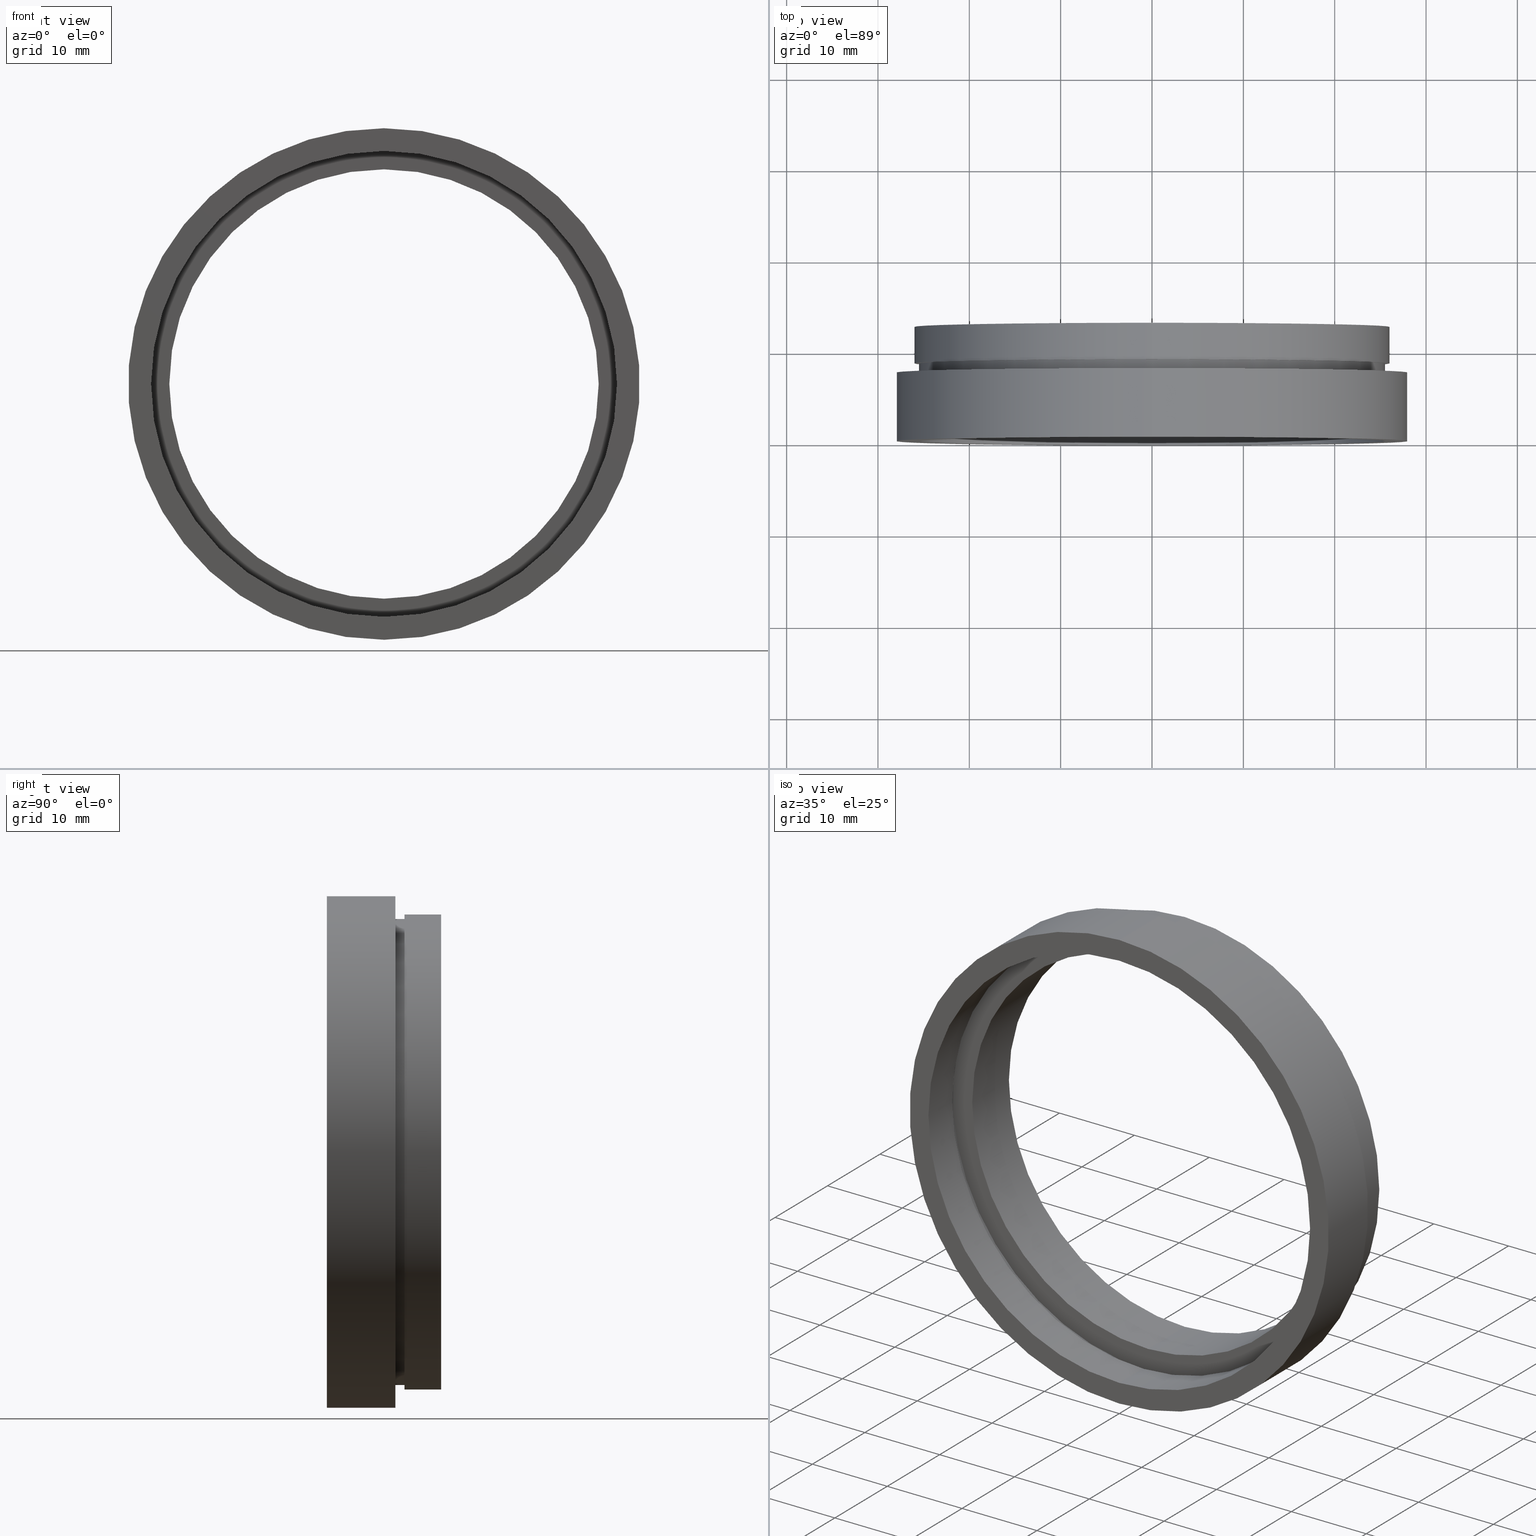
[diagram: canonical four-view strip — front | top / right | iso, engineering-drawing reading convention]
A machine part, canonical four-view strip (front | top / right | iso — engineering-drawing reading convention). The complete STEP part file that produces these views, byte-faithful:
ISO-10303-21;
HEADER;
FILE_DESCRIPTION (( 'STEP AP214' ),
    '1' );
FILE_NAME ('503005.STEP',
    '2019-09-04T05:41:23',
    ( '' ),
    ( '' ),
    'SwSTEP 2.0',
    'SolidWorks 2016',
    '' );
FILE_SCHEMA (( 'AUTOMOTIVE_DESIGN' ));
ENDSEC;

DATA;
#1 = DIRECTION ( 'NONE',  ( -0.0000000000000000000, 1.000000000000000000, -0.0000000000000000000 ) ) ;
#2 = VECTOR ( 'NONE', #183, 1000.000000000000000 ) ;
#3 = DIRECTION ( 'NONE',  ( 0.0000000000000000000, 0.0000000000000000000, 1.000000000000000000 ) ) ;
#4 = EDGE_CURVE ( 'NONE', #502, #486, #518, .T. ) ;
#5 = DIRECTION ( 'NONE',  ( -0.0000000000000000000, 1.000000000000000000, -0.0000000000000000000 ) ) ;
#6 = ORIENTED_EDGE ( 'NONE', *, *, #397, .T. ) ;
#7 = ORIENTED_EDGE ( 'NONE', *, *, #243, .F. ) ;
#8 = SURFACE_STYLE_USAGE ( .BOTH. , #163 ) ;
#9 = STYLED_ITEM ( 'NONE', ( #399 ), #546 ) ;
#10 =( LENGTH_UNIT ( ) NAMED_UNIT ( * ) SI_UNIT ( .MILLI., .METRE. ) );
#11 = ADVANCED_FACE ( 'NONE', ( #494 ), #536, .F. ) ;
#12 = DIRECTION ( 'NONE',  ( 0.0000000000000000000, -1.000000000000000000, 0.0000000000000000000 ) ) ;
#13 = CARTESIAN_POINT ( 'NONE',  ( 3.122849337825753000E-015, 161.3761669434274500, -25.50000000000001800 ) ) ;
#14 = ORIENTED_EDGE ( 'NONE', *, *, #525, .T. ) ;
#15 = ADVANCED_FACE ( 'NONE', ( #318 ), #45, .T. ) ;
#16 = CYLINDRICAL_SURFACE ( 'NONE', #369, 25.50000000000001800 ) ;
#17 = VECTOR ( 'NONE', #327, 1000.000000000000000 ) ;
#18 = AXIS2_PLACEMENT_3D ( 'NONE', #495, #340, #197 ) ;
#19 = EDGE_CURVE ( 'NONE', #575, #363, #423, .T. ) ;
#20 = ORIENTED_EDGE ( 'NONE', *, *, #271, .T. ) ;
#21 = EDGE_LOOP ( 'NONE', ( #7, #127 ) ) ;
#22 = DIRECTION ( 'NONE',  ( -0.0000000000000000000, 1.000000000000000000, -0.0000000000000000000 ) ) ;
#23 =( NAMED_UNIT ( * ) SI_UNIT ( $, .STERADIAN. ) SOLID_ANGLE_UNIT ( ) );
#24 = EDGE_LOOP ( 'NONE', ( #247, #175, #14, #96 ) ) ;
#25 = ORIENTED_EDGE ( 'NONE', *, *, #19, .F. ) ;
#26 = FACE_OUTER_BOUND ( 'NONE', #146, .T. ) ;
#27 = FACE_OUTER_BOUND ( 'NONE', #31, .T. ) ;
#28 = SURFACE_STYLE_FILL_AREA ( #613 ) ;
#29 = CARTESIAN_POINT ( 'NONE',  ( 0.0000000000000000000, 8.499999999999980500, 0.0000000000000000000 ) ) ;
#30 = EDGE_CURVE ( 'NONE', #164, #200, #290, .T. ) ;
#31 = EDGE_LOOP ( 'NONE', ( #624, #587, #541, #139 ) ) ;
#32 = DIRECTION ( 'NONE',  ( -0.0000000000000000000, 1.000000000000000000, -0.0000000000000000000 ) ) ;
#33 = VERTEX_POINT ( 'NONE', #174 ) ;
#34 = DIRECTION ( 'NONE',  ( -0.0000000000000000000, 1.000000000000000000, -0.0000000000000000000 ) ) ;
#35 = SURFACE_STYLE_FILL_AREA ( #80 ) ;
#36 = CARTESIAN_POINT ( 'NONE',  ( 0.0000000000000000000, 8.499999999999980500, 26.00000000000001800 ) ) ;
#37 = MECHANICAL_DESIGN_GEOMETRIC_PRESENTATION_REPRESENTATION (  '', ( #9 ), #71 ) ;
#38 = SURFACE_SIDE_STYLE ('',( #441 ) ) ;
#39 = PRESENTATION_STYLE_ASSIGNMENT (( #70 ) ) ;
#40 = EDGE_LOOP ( 'NONE', ( #444, #261 ) ) ;
#41 = DIRECTION ( 'NONE',  ( 0.0000000000000000000, 0.0000000000000000000, 1.000000000000000000 ) ) ;
#42 = ORIENTED_EDGE ( 'NONE', *, *, #435, .T. ) ;
#43 = CARTESIAN_POINT ( 'NONE',  ( 0.0000000000000000000, 12.49999999999998400, 0.0000000000000000000 ) ) ;
#44 = PLANE ( 'NONE',  #410 ) ;
#45 = CYLINDRICAL_SURFACE ( 'NONE', #548, 25.50000000000001400 ) ;
#46 = CIRCLE ( 'NONE', #484, 25.50000000000001400 ) ;
#47 = CARTESIAN_POINT ( 'NONE',  ( 0.0000000000000000000, 4.499999999999976000, 25.50000000000001800 ) ) ;
#48 = LINE ( 'NONE', #376, #17 ) ;
#49 = CARTESIAN_POINT ( 'NONE',  ( 3.184081677783120200E-015, 12.49999999999998400, -26.00000000000001800 ) ) ;
#50 = AXIS2_PLACEMENT_3D ( 'NONE', #294, #339, #51 ) ;
#51 = DIRECTION ( 'NONE',  ( 0.0000000000000000000, 0.0000000000000000000, 1.000000000000000000 ) ) ;
#52 = ORIENTED_EDGE ( 'NONE', *, *, #435, .F. ) ;
#53 = PRESENTATION_LAYER_ASSIGNMENT (  '', '', ( #9 ) ) ;
#54 = EDGE_CURVE ( 'NONE', #363, #575, #558, .T. ) ;
#55 = CARTESIAN_POINT ( 'NONE',  ( 0.0000000000000000000, 7.499999999999978700, 0.0000000000000000000 ) ) ;
#56 = VECTOR ( 'NONE', #448, 1000.000000000000000 ) ;
#57 = ADVANCED_BREP_SHAPE_REPRESENTATION ( '503005', ( #469, #596 ), #612 ) ;
#58 =( NAMED_UNIT ( * ) SI_UNIT ( $, .STERADIAN. ) SOLID_ANGLE_UNIT ( ) );
#59 = EDGE_LOOP ( 'NONE', ( #516, #190, #588, #52 ) ) ;
#60 = ADVANCED_FACE ( 'NONE', ( #26 ), #298, .T. ) ;
#61 = DIRECTION ( 'NONE',  ( -0.0000000000000000000, 1.000000000000000000, -0.0000000000000000000 ) ) ;
#62 = CYLINDRICAL_SURFACE ( 'NONE', #550, 23.50000000000002100 ) ;
#63 = ORIENTED_EDGE ( 'NONE', *, *, #101, .T. ) ;
#64 = FILL_AREA_STYLE_COLOUR ( '', #419 ) ;
#65 = CARTESIAN_POINT ( 'NONE',  ( 0.0000000000000000000, 161.3761669434274500, 0.0000000000000000000 ) ) ;
#66 = VERTEX_POINT ( 'NONE', #481 ) ;
#67 = EDGE_CURVE ( 'NONE', #184, #92, #553, .T. ) ;
#68 = CIRCLE ( 'NONE', #514, 25.50000000000001800 ) ;
#69 = PRODUCT_CONTEXT ( 'NONE', #456, 'mechanical' ) ;
#70 = SURFACE_STYLE_USAGE ( .BOTH. , #119 ) ;
#71 =( GEOMETRIC_REPRESENTATION_CONTEXT ( 3 ) GLOBAL_UNCERTAINTY_ASSIGNED_CONTEXT ( ( #102 ) ) GLOBAL_UNIT_ASSIGNED_CONTEXT ( ( #623, #135, #482 ) ) REPRESENTATION_CONTEXT ( 'NONE', 'WORKASPACE' ) );
#72 = CIRCLE ( 'NONE', #466, 25.50000000000001800 ) ;
#73 = EDGE_LOOP ( 'NONE', ( #519, #513 ) ) ;
#74 = AXIS2_PLACEMENT_3D ( 'NONE', #100, #1, #41 ) ;
#75 = CYLINDRICAL_SURFACE ( 'NONE', #393, 23.50000000000002100 ) ;
#76 = EDGE_CURVE ( 'NONE', #607, #144, #617, .T. ) ;
#77 = ORIENTED_EDGE ( 'NONE', *, *, #430, .T. ) ;
#78 = ORIENTED_EDGE ( 'NONE', *, *, #359, .T. ) ;
#79 = CARTESIAN_POINT ( 'NONE',  ( 0.0000000000000000000, 161.3761669434274500, 0.0000000000000000000 ) ) ;
#80 = FILL_AREA_STYLE ('',( #442 ) ) ;
#81 =( LENGTH_UNIT ( ) NAMED_UNIT ( * ) SI_UNIT ( .MILLI., .METRE. ) );
#82 = CARTESIAN_POINT ( 'NONE',  ( 0.0000000000000000000, 161.3761669434274500, 0.0000000000000000000 ) ) ;
#83 = CARTESIAN_POINT ( 'NONE',  ( 0.0000000000000000000, 161.3761669434274500, 26.10000000000002300 ) ) ;
#84 = CARTESIAN_POINT ( 'NONE',  ( 0.0000000000000000000, 4.499999999999976000, 26.10000000000002300 ) ) ;
#85 =( NAMED_UNIT ( * ) PLANE_ANGLE_UNIT ( ) SI_UNIT ( $, .RADIAN. ) );
#86 = EDGE_LOOP ( 'NONE', ( #138, #598, #396, #412 ) ) ;
#87 = DIRECTION ( 'NONE',  ( -0.0000000000000000000, 1.000000000000000000, -0.0000000000000000000 ) ) ;
#88 = CARTESIAN_POINT ( 'NONE',  ( 25.50000000000001400, 7.499999999999985800, 0.0000000000000000000 ) ) ;
#89 = FACE_OUTER_BOUND ( 'NONE', #73, .T. ) ;
#90 = CARTESIAN_POINT ( 'NONE',  ( 0.0000000000000000000, 5.499999999999976900, 0.0000000000000000000 ) ) ;
#91 = CARTESIAN_POINT ( 'NONE',  ( 3.429011037612590900E-015, -2.775557561562891400E-014, -28.00000000000001800 ) ) ;
#92 = VERTEX_POINT ( 'NONE', #230 ) ;
#93 = CARTESIAN_POINT ( 'NONE',  ( 0.0000000000000000000, 12.49999999999998400, 23.50000000000002100 ) ) ;
#94 = DIRECTION ( 'NONE',  ( -0.0000000000000000000, 1.000000000000000000, -0.0000000000000000000 ) ) ;
#95 = EDGE_LOOP ( 'NONE', ( #141, #161 ) ) ;
#96 = ORIENTED_EDGE ( 'NONE', *, *, #260, .F. ) ;
#97 =( NAMED_UNIT ( * ) PLANE_ANGLE_UNIT ( ) SI_UNIT ( $, .RADIAN. ) );
#98 = DIRECTION ( 'NONE',  ( 0.0000000000000000000, 0.0000000000000000000, 1.000000000000000000 ) ) ;
#99 = COLOUR_RGB ( '',1.000000000000000000, 1.000000000000000000, 1.000000000000000000 ) ;
#100 = CARTESIAN_POINT ( 'NONE',  ( 0.0000000000000000000, 161.3761669434274500, 0.0000000000000000000 ) ) ;
#101 = EDGE_CURVE ( 'NONE', #356, #66, #413, .T. ) ;
#102 = UNCERTAINTY_MEASURE_WITH_UNIT (LENGTH_MEASURE( 1.000000000000000100E-005 ), #623, 'distance_accuracy_value', 'NONE');
#103 = CARTESIAN_POINT ( 'NONE',  ( 28.00000000000001800, -1.408179048343280700E-014, 0.0000000000000000000 ) ) ;
#104 = AXIS2_PLACEMENT_3D ( 'NONE', #90, #489, #439 ) ;
#105 = ADVANCED_FACE ( 'NONE', ( #360 ), #512, .T. ) ;
#106 = DIRECTION ( 'NONE',  ( -0.0000000000000000000, 1.000000000000000000, -0.0000000000000000000 ) ) ;
#107 = LINE ( 'NONE', #193, #357 ) ;
#108 = ORIENTED_EDGE ( 'NONE', *, *, #114, .F. ) ;
#109 = ADVANCED_FACE ( 'NONE', ( #185 ), #62, .F. ) ;
#110 = DIRECTION ( 'NONE',  ( 0.0000000000000000000, 0.0000000000000000000, 1.000000000000000000 ) ) ;
#111 = SHAPE_DEFINITION_REPRESENTATION ( #348, #57 ) ;
#112 = PRESENTATION_STYLE_ASSIGNMENT (( #315 ) ) ;
#113 = STYLED_ITEM ( 'NONE', ( #521 ), #167 ) ;
#114 = EDGE_CURVE ( 'NONE', #557, #33, #338, .T. ) ;
#115 = VECTOR ( 'NONE', #94, 1000.000000000000000 ) ;
#116 =( GEOMETRIC_REPRESENTATION_CONTEXT ( 3 ) GLOBAL_UNCERTAINTY_ASSIGNED_CONTEXT ( ( #296 ) ) GLOBAL_UNIT_ASSIGNED_CONTEXT ( ( #555, #418, #510 ) ) REPRESENTATION_CONTEXT ( 'NONE', 'WORKASPACE' ) );
#117 = STYLED_ITEM ( 'NONE', ( #39 ), #57 ) ;
#118 = EDGE_CURVE ( 'NONE', #92, #252, #48, .T. ) ;
#119 = SURFACE_SIDE_STYLE ('',( #304 ) ) ;
#120 = EDGE_LOOP ( 'NONE', ( #497, #405 ) ) ;
#121 = APPLICATION_CONTEXT ( 'automotive_design' ) ;
#122 = DIRECTION ( 'NONE',  ( -0.0000000000000000000, 1.000000000000000000, -0.0000000000000000000 ) ) ;
#123 =( GEOMETRIC_REPRESENTATION_CONTEXT ( 3 ) GLOBAL_UNCERTAINTY_ASSIGNED_CONTEXT ( ( #572 ) ) GLOBAL_UNIT_ASSIGNED_CONTEXT ( ( #361, #362, #177 ) ) REPRESENTATION_CONTEXT ( 'NONE', 'WORKASPACE' ) );
#124 = PRESENTATION_LAYER_ASSIGNMENT (  '', '', ( #493 ) ) ;
#125 = CARTESIAN_POINT ( 'NONE',  ( 0.0000000000000000000, -2.775557561562891400E-014, 0.0000000000000000000 ) ) ;
#126 = CIRCLE ( 'NONE', #552, 23.50000000000002100 ) ;
#127 = ORIENTED_EDGE ( 'NONE', *, *, #101, .F. ) ;
#128 = DIRECTION ( 'NONE',  ( 0.0000000000000000000, 0.0000000000000000000, 1.000000000000000000 ) ) ;
#129 = ORIENTED_EDGE ( 'NONE', *, *, #344, .F. ) ;
#130 = PRESENTATION_LAYER_ASSIGNMENT (  '', '', ( #117 ) ) ;
#131 = CYLINDRICAL_SURFACE ( 'NONE', #18, 25.50000000000001400 ) ;
#132 =( NAMED_UNIT ( * ) PLANE_ANGLE_UNIT ( ) SI_UNIT ( $, .RADIAN. ) );
#133 = CARTESIAN_POINT ( 'NONE',  ( 0.0000000000000000000, 7.499999999999978700, 0.0000000000000000000 ) ) ;
#134 = EDGE_CURVE ( 'NONE', #561, #438, #320, .T. ) ;
#135 =( NAMED_UNIT ( * ) PLANE_ANGLE_UNIT ( ) SI_UNIT ( $, .RADIAN. ) );
#136 = CARTESIAN_POINT ( 'NONE',  ( 2.877919977996282700E-015, 5.499999999999976900, -23.50000000000002100 ) ) ;
#137 = VERTEX_POINT ( 'NONE', #373 ) ;
#138 = ORIENTED_EDGE ( 'NONE', *, *, #430, .F. ) ;
#139 = ORIENTED_EDGE ( 'NONE', *, *, #372, .F. ) ;
#140 = FILL_AREA_STYLE_COLOUR ( '', #210 ) ;
#141 = ORIENTED_EDGE ( 'NONE', *, *, #446, .F. ) ;
#142 = CARTESIAN_POINT ( 'NONE',  ( 0.0000000000000000000, 12.49999999999998400, 0.0000000000000000000 ) ) ;
#143 = PLANE ( 'NONE',  #192 ) ;
#144 = VERTEX_POINT ( 'NONE', #524 ) ;
#145 = DIRECTION ( 'NONE',  ( 0.0000000000000000000, 0.0000000000000000000, 1.000000000000000000 ) ) ;
#146 = EDGE_LOOP ( 'NONE', ( #437, #78, #274, #205 ) ) ;
#147 = PRODUCT_DEFINITION_CONTEXT ( 'detailed design', #121, 'design' ) ;
#148 = AXIS2_PLACEMENT_3D ( 'NONE', #335, #381, #289 ) ;
#149 = FACE_OUTER_BOUND ( 'NONE', #585, .T. ) ;
#150 = EDGE_CURVE ( 'NONE', #164, #597, #292, .T. ) ;
#151 = CARTESIAN_POINT ( 'NONE',  ( 3.429011037612590900E-015, 7.499999999999978700, -28.00000000000001800 ) ) ;
#152 = PRODUCT_DEFINITION ( 'δ֪', '', #391, #147 ) ;
#153 = CARTESIAN_POINT ( 'NONE',  ( 0.0000000000000000000, 161.3761669434274500, 0.0000000000000000000 ) ) ;
#154 = ORIENTED_EDGE ( 'NONE', *, *, #566, .F. ) ;
#155 = AXIS2_PLACEMENT_3D ( 'NONE', #142, #578, #232 ) ;
#156 = PRESENTATION_STYLE_ASSIGNMENT (( #186 ) ) ;
#157 = ORIENTED_EDGE ( 'NONE', *, *, #467, .T. ) ;
#158 = PLANE ( 'NONE',  #314 ) ;
#159 = DIRECTION ( 'NONE',  ( 0.0000000000000000000, 0.0000000000000000000, 1.000000000000000000 ) ) ;
#160 = AXIS2_PLACEMENT_3D ( 'NONE', #515, #366, #265 ) ;
#161 = ORIENTED_EDGE ( 'NONE', *, *, #4, .F. ) ;
#162 = MECHANICAL_DESIGN_GEOMETRIC_PRESENTATION_REPRESENTATION (  '', ( #493 ), #194 ) ;
#163 = SURFACE_SIDE_STYLE ('',( #468 ) ) ;
#164 = VERTEX_POINT ( 'NONE', #136 ) ;
#165 = DIRECTION ( 'NONE',  ( 0.0000000000000000000, -0.0000000000000000000, -1.000000000000000000 ) ) ;
#166 = SURFACE_STYLE_FILL_AREA ( #225 ) ;
#167 = ADVANCED_FACE ( 'NONE', ( #149 ), #259, .T. ) ;
#168 = EDGE_LOOP ( 'NONE', ( #20, #77 ) ) ;
#169 = ORIENTED_EDGE ( 'NONE', *, *, #600, .T. ) ;
#170 = EDGE_CURVE ( 'NONE', #184, #453, #581, .T. ) ;
#171 = DIRECTION ( 'NONE',  ( 1.000000000000000000, 0.0000000000000000000, 0.0000000000000000000 ) ) ;
#172 = LINE ( 'NONE', #388, #115 ) ;
#173 = UNCERTAINTY_MEASURE_WITH_UNIT (LENGTH_MEASURE( 1.000000000000000100E-005 ), #620, 'distance_accuracy_value', 'NONE');
#174 = CARTESIAN_POINT ( 'NONE',  ( 0.0000000000000000000, 5.499999999999976900, 26.10000000000002300 ) ) ;
#175 = ORIENTED_EDGE ( 'NONE', *, *, #30, .T. ) ;
#176 = ORIENTED_EDGE ( 'NONE', *, *, #508, .F. ) ;
#177 =( NAMED_UNIT ( * ) SI_UNIT ( $, .STERADIAN. ) SOLID_ANGLE_UNIT ( ) );
#178 = COLOUR_RGB ( '',1.000000000000000000, 1.000000000000000000, 1.000000000000000000 ) ;
#179 = CIRCLE ( 'NONE', #544, 26.10000000000002300 ) ;
#180 = DIRECTION ( 'NONE',  ( -0.0000000000000000000, 1.000000000000000000, -0.0000000000000000000 ) ) ;
#181 = AXIS2_PLACEMENT_3D ( 'NONE', #248, #5, #110 ) ;
#182 = EDGE_CURVE ( 'NONE', #350, #486, #392, .T. ) ;
#183 = DIRECTION ( 'NONE',  ( -0.0000000000000000000, 1.000000000000000000, -0.0000000000000000000 ) ) ;
#184 = VERTEX_POINT ( 'NONE', #36 ) ;
#185 = FACE_OUTER_BOUND ( 'NONE', #24, .T. ) ;
#186 = SURFACE_STYLE_USAGE ( .BOTH. , #233 ) ;
#187 = CARTESIAN_POINT ( 'NONE',  ( 3.122849337825753000E-015, -2.775557561562891400E-014, -25.50000000000001800 ) ) ;
#188 = CARTESIAN_POINT ( 'NONE',  ( 0.0000000000000000000, 161.3761669434274500, 0.0000000000000000000 ) ) ;
#189 = CARTESIAN_POINT ( 'NONE',  ( 0.0000000000000000000, 8.499999999999980500, 25.50000000000001400 ) ) ;
#190 = ORIENTED_EDGE ( 'NONE', *, *, #54, .T. ) ;
#191 = FILL_AREA_STYLE ('',( #378 ) ) ;
#192 = AXIS2_PLACEMENT_3D ( 'NONE', #236, #584, #496 ) ;
#193 = CARTESIAN_POINT ( 'NONE',  ( 3.122849337825752600E-015, 161.3761669434274500, -25.50000000000001400 ) ) ;
#194 =( GEOMETRIC_REPRESENTATION_CONTEXT ( 3 ) GLOBAL_UNCERTAINTY_ASSIGNED_CONTEXT ( ( #509 ) ) GLOBAL_UNIT_ASSIGNED_CONTEXT ( ( #616, #132, #367 ) ) REPRESENTATION_CONTEXT ( 'NONE', 'WORKASPACE' ) );
#195 = FACE_OUTER_BOUND ( 'NONE', #323, .T. ) ;
#196 = DIRECTION ( 'NONE',  ( -0.0000000000000000000, 1.000000000000000000, -0.0000000000000000000 ) ) ;
#197 = DIRECTION ( 'NONE',  ( 0.0000000000000000000, 0.0000000000000000000, 1.000000000000000000 ) ) ;
#198 = PLANE ( 'NONE',  #586 ) ;
#199 = FACE_OUTER_BOUND ( 'NONE', #224, .T. ) ;
#200 = VERTEX_POINT ( 'NONE', #610 ) ;
#201 = CARTESIAN_POINT ( 'NONE',  ( 0.0000000000000000000, -2.775557561562891400E-014, 25.50000000000001800 ) ) ;
#202 = EDGE_CURVE ( 'NONE', #252, #453, #507, .T. ) ;
#203 = DIRECTION ( 'NONE',  ( -0.0000000000000000000, 1.000000000000000000, -0.0000000000000000000 ) ) ;
#204 = DIRECTION ( 'NONE',  ( -0.0000000000000000000, 1.000000000000000000, 0.0000000000000000000 ) ) ;
#205 = ORIENTED_EDGE ( 'NONE', *, *, #202, .F. ) ;
#206 = DIRECTION ( 'NONE',  ( 0.0000000000000000000, 0.0000000000000000000, 1.000000000000000000 ) ) ;
#207 = ADVANCED_FACE ( 'NONE', ( #459 ), #16, .F. ) ;
#208 = CYLINDRICAL_SURFACE ( 'NONE', #277, 26.10000000000002300 ) ;
#209 = DIRECTION ( 'NONE',  ( 0.0000000000000000000, 0.0000000000000000000, 1.000000000000000000 ) ) ;
#210 = COLOUR_RGB ( '',1.000000000000000000, 1.000000000000000000, 1.000000000000000000 ) ;
#211 = ADVANCED_FACE ( 'NONE', ( #27 ), #389, .T. ) ;
#212 = CARTESIAN_POINT ( 'NONE',  ( 0.0000000000000000000, -2.775557561562891400E-014, 0.0000000000000000000 ) ) ;
#213 = AXIS2_PLACEMENT_3D ( 'NONE', #79, #568, #275 ) ;
#214 = STYLED_ITEM ( 'NONE', ( #112 ), #11 ) ;
#215 = ORIENTED_EDGE ( 'NONE', *, *, #134, .T. ) ;
#216 = UNCERTAINTY_MEASURE_WITH_UNIT (LENGTH_MEASURE( 1.000000000000000100E-005 ), #81, 'distance_accuracy_value', 'NONE');
#217 = AXIS2_PLACEMENT_3D ( 'NONE', #103, #204, #206 ) ;
#218 = DIRECTION ( 'NONE',  ( 0.0000000000000000000, 0.0000000000000000000, 1.000000000000000000 ) ) ;
#219 = CARTESIAN_POINT ( 'NONE',  ( 2.877919977996282700E-015, 161.3761669434274500, -23.50000000000002100 ) ) ;
#220 = MECHANICAL_DESIGN_GEOMETRIC_PRESENTATION_REPRESENTATION (  '', ( #382 ), #123 ) ;
#221 = AXIS2_PLACEMENT_3D ( 'NONE', #29, #32, #487 ) ;
#222 =( LENGTH_UNIT ( ) NAMED_UNIT ( * ) SI_UNIT ( .MILLI., .METRE. ) );
#223 = CARTESIAN_POINT ( 'NONE',  ( 0.0000000000000000000, 161.3761669434274500, 0.0000000000000000000 ) ) ;
#224 = EDGE_LOOP ( 'NONE', ( #528, #463 ) ) ;
#225 = FILL_AREA_STYLE ('',( #608 ) ) ;
#226 = DIRECTION ( 'NONE',  ( -0.0000000000000000000, 1.000000000000000000, -0.0000000000000000000 ) ) ;
#227 = FACE_BOUND ( 'NONE', #168, .T. ) ;
#228 = PRODUCT ( '503005', '503005', '', ( #69 ) ) ;
#229 = DIRECTION ( 'NONE',  ( -0.0000000000000000000, 1.000000000000000000, -0.0000000000000000000 ) ) ;
#230 = CARTESIAN_POINT ( 'NONE',  ( 3.184081677783120200E-015, 8.499999999999980500, -26.00000000000001800 ) ) ;
#231 = EDGE_CURVE ( 'NONE', #66, #561, #172, .T. ) ;
#232 = DIRECTION ( 'NONE',  ( 0.0000000000000000000, 0.0000000000000000000, 1.000000000000000000 ) ) ;
#233 = SURFACE_SIDE_STYLE ('',( #501 ) ) ;
#234 = CARTESIAN_POINT ( 'NONE',  ( 0.0000000000000000000, 161.3761669434274500, 0.0000000000000000000 ) ) ;
#235 = SURFACE_SIDE_STYLE ('',( #28 ) ) ;
#236 = CARTESIAN_POINT ( 'NONE',  ( 23.50000000000002100, 12.49999999999998800, 0.0000000000000000000 ) ) ;
#237 = EDGE_LOOP ( 'NONE', ( #551, #334, #240, #364 ) ) ;
#238 = DIRECTION ( 'NONE',  ( 0.0000000000000000000, 0.0000000000000000000, 1.000000000000000000 ) ) ;
#239 = SURFACE_STYLE_FILL_AREA ( #474 ) ;
#240 = ORIENTED_EDGE ( 'NONE', *, *, #134, .F. ) ;
#241 = CARTESIAN_POINT ( 'NONE',  ( 0.0000000000000000000, 4.499999999999976000, 0.0000000000000000000 ) ) ;
#242 =( GEOMETRIC_REPRESENTATION_CONTEXT ( 3 ) GLOBAL_UNCERTAINTY_ASSIGNED_CONTEXT ( ( #216 ) ) GLOBAL_UNIT_ASSIGNED_CONTEXT ( ( #81, #426, #322 ) ) REPRESENTATION_CONTEXT ( 'NONE', 'WORKASPACE' ) );
#243 = EDGE_CURVE ( 'NONE', #66, #356, #554, .T. ) ;
#244 = FACE_BOUND ( 'NONE', #540, .T. ) ;
#245 = DIRECTION ( 'NONE',  ( 0.0000000000000000000, 0.0000000000000000000, 1.000000000000000000 ) ) ;
#246 = AXIS2_PLACEMENT_3D ( 'NONE', #454, #303, #159 ) ;
#247 = ORIENTED_EDGE ( 'NONE', *, *, #150, .F. ) ;
#248 = CARTESIAN_POINT ( 'NONE',  ( 0.0000000000000000000, 8.499999999999980500, 0.0000000000000000000 ) ) ;
#249 = ADVANCED_FACE ( 'NONE', ( #368, #567 ), #44, .F. ) ;
#250 = DIRECTION ( 'NONE',  ( -0.0000000000000000000, 1.000000000000000000, -0.0000000000000000000 ) ) ;
#251 = AXIS2_PLACEMENT_3D ( 'NONE', #223, #180, #268 ) ;
#252 = VERTEX_POINT ( 'NONE', #49 ) ;
#253 = MECHANICAL_DESIGN_GEOMETRIC_PRESENTATION_REPRESENTATION (  '', ( #113 ), #242 ) ;
#254 =( NAMED_UNIT ( * ) PLANE_ANGLE_UNIT ( ) SI_UNIT ( $, .RADIAN. ) );
#255 = ADVANCED_FACE ( 'NONE', ( #488, #449 ), #198, .F. ) ;
#256 = EDGE_LOOP ( 'NONE', ( #25, #511 ) ) ;
#257 = ORIENTED_EDGE ( 'NONE', *, *, #473, .T. ) ;
#258 = CYLINDRICAL_SURFACE ( 'NONE', #445, 26.10000000000002300 ) ;
#259 = CYLINDRICAL_SURFACE ( 'NONE', #270, 26.00000000000001800 ) ;
#260 = EDGE_CURVE ( 'NONE', #597, #526, #609, .T. ) ;
#261 = ORIENTED_EDGE ( 'NONE', *, *, #150, .T. ) ;
#262 = ORIENTED_EDGE ( 'NONE', *, *, #271, .F. ) ;
#263 = CARTESIAN_POINT ( 'NONE',  ( 0.0000000000000000000, 4.499999999999976000, 0.0000000000000000000 ) ) ;
#264 = ORIENTED_EDGE ( 'NONE', *, *, #76, .T. ) ;
#265 = DIRECTION ( 'NONE',  ( 0.0000000000000000000, 0.0000000000000000000, 1.000000000000000000 ) ) ;
#266 = COLOUR_RGB ( '',1.000000000000000000, 1.000000000000000000, 1.000000000000000000 ) ;
#267 = DIRECTION ( 'NONE',  ( -0.0000000000000000000, 1.000000000000000000, -0.0000000000000000000 ) ) ;
#268 = DIRECTION ( 'NONE',  ( 0.0000000000000000000, 0.0000000000000000000, 1.000000000000000000 ) ) ;
#269 = VECTOR ( 'NONE', #436, 1000.000000000000000 ) ;
#270 = AXIS2_PLACEMENT_3D ( 'NONE', #234, #576, #280 ) ;
#271 = EDGE_CURVE ( 'NONE', #350, #622, #326, .T. ) ;
#272 = DIRECTION ( 'NONE',  ( -0.0000000000000000000, 1.000000000000000000, -0.0000000000000000000 ) ) ;
#273 = DIRECTION ( 'NONE',  ( 0.0000000000000000000, 0.0000000000000000000, 1.000000000000000000 ) ) ;
#274 = ORIENTED_EDGE ( 'NONE', *, *, #170, .T. ) ;
#275 = DIRECTION ( 'NONE',  ( 0.0000000000000000000, 0.0000000000000000000, 1.000000000000000000 ) ) ;
#276 = ORIENTED_EDGE ( 'NONE', *, *, #478, .F. ) ;
#277 = AXIS2_PLACEMENT_3D ( 'NONE', #299, #302, #545 ) ;
#278 = DIRECTION ( 'NONE',  ( 0.0000000000000000000, 0.0000000000000000000, 1.000000000000000000 ) ) ;
#279 = UNCERTAINTY_MEASURE_WITH_UNIT (LENGTH_MEASURE( 1.000000000000000100E-005 ), #380, 'distance_accuracy_value', 'NONE');
#280 = DIRECTION ( 'NONE',  ( 0.0000000000000000000, 0.0000000000000000000, 1.000000000000000000 ) ) ;
#281 = ORIENTED_EDGE ( 'NONE', *, *, #170, .F. ) ;
#282 = PLANE ( 'NONE',  #590 ) ;
#283 = SURFACE_STYLE_USAGE ( .BOTH. , #38 ) ;
#284 = AXIS2_PLACEMENT_3D ( 'NONE', #565, #272, #611 ) ;
#285 = SURFACE_STYLE_USAGE ( .BOTH. , #569 ) ;
#286 = ORIENTED_EDGE ( 'NONE', *, *, #330, .T. ) ;
#287 = CARTESIAN_POINT ( 'NONE',  ( 0.0000000000000000000, 161.3761669434274500, 28.00000000000001800 ) ) ;
#288 = AXIS2_PLACEMENT_3D ( 'NONE', #574, #433, #273 ) ;
#289 = DIRECTION ( 'NONE',  ( 0.0000000000000000000, 0.0000000000000000000, 1.000000000000000000 ) ) ;
#290 = LINE ( 'NONE', #219, #440 ) ;
#291 = CIRCLE ( 'NONE', #347, 26.10000000000002300 ) ;
#292 = CIRCLE ( 'NONE', #288, 23.50000000000002100 ) ;
#293 = DIRECTION ( 'NONE',  ( -0.0000000000000000000, 1.000000000000000000, -0.0000000000000000000 ) ) ;
#294 = CARTESIAN_POINT ( 'NONE',  ( 0.0000000000000000000, 7.499999999999978700, 0.0000000000000000000 ) ) ;
#295 = CARTESIAN_POINT ( 'NONE',  ( 0.0000000000000000000, 5.499999999999976900, 0.0000000000000000000 ) ) ;
#296 = UNCERTAINTY_MEASURE_WITH_UNIT (LENGTH_MEASURE( 1.000000000000000100E-005 ), #555, 'distance_accuracy_value', 'NONE');
#297 = EDGE_LOOP ( 'NONE', ( #422, #154, #595, #169 ) ) ;
#298 = CYLINDRICAL_SURFACE ( 'NONE', #251, 26.00000000000001800 ) ;
#299 = CARTESIAN_POINT ( 'NONE',  ( 0.0000000000000000000, 161.3761669434274500, 0.0000000000000000000 ) ) ;
#300 = AXIS2_PLACEMENT_3D ( 'NONE', #263, #267, #128 ) ;
#301 = CIRCLE ( 'NONE', #148, 26.10000000000002300 ) ;
#302 = DIRECTION ( 'NONE',  ( -0.0000000000000000000, 1.000000000000000000, -0.0000000000000000000 ) ) ;
#303 = DIRECTION ( 'NONE',  ( -0.0000000000000000000, 1.000000000000000000, -0.0000000000000000000 ) ) ;
#304 = SURFACE_STYLE_FILL_AREA ( #408 ) ;
#305 = ADVANCED_FACE ( 'NONE', ( #603 ), #258, .F. ) ;
#306 = CIRCLE ( 'NONE', #573, 26.00000000000001800 ) ;
#307 = PRESENTATION_STYLE_ASSIGNMENT (( #283 ) ) ;
#308 = ORIENTED_EDGE ( 'NONE', *, *, #118, .T. ) ;
#309 = AXIS2_PLACEMENT_3D ( 'NONE', #619, #480, #332 ) ;
#310 = EDGE_CURVE ( 'NONE', #144, #33, #434, .T. ) ;
#311 = ORIENTED_EDGE ( 'NONE', *, *, #539, .F. ) ;
#312 = PRODUCT_RELATED_PRODUCT_CATEGORY ( 'part', '', ( #228 ) ) ;
#313 = FACE_OUTER_BOUND ( 'NONE', #256, .T. ) ;
#314 = AXIS2_PLACEMENT_3D ( 'NONE', #505, #12, #165 ) ;
#315 = SURFACE_STYLE_USAGE ( .BOTH. , #602 ) ;
#316 = FACE_BOUND ( 'NONE', #447, .T. ) ;
#317 = AXIS2_PLACEMENT_3D ( 'NONE', #125, #122, #604 ) ;
#318 = FACE_OUTER_BOUND ( 'NONE', #475, .T. ) ;
#319 = PRESENTATION_LAYER_ASSIGNMENT (  '', '', ( #342 ) ) ;
#320 = CIRCLE ( 'NONE', #221, 25.50000000000001400 ) ;
#321 = CARTESIAN_POINT ( 'NONE',  ( 0.0000000000000000000, 161.3761669434274500, 0.0000000000000000000 ) ) ;
#322 =( NAMED_UNIT ( * ) SI_UNIT ( $, .STERADIAN. ) SOLID_ANGLE_UNIT ( ) );
#323 = EDGE_LOOP ( 'NONE', ( #395, #157 ) ) ;
#324 = DIRECTION ( 'NONE',  ( -0.0000000000000000000, 1.000000000000000000, -0.0000000000000000000 ) ) ;
#325 = CARTESIAN_POINT ( 'NONE',  ( 3.196328145774594700E-015, 161.3761669434274500, -26.10000000000002300 ) ) ;
#326 = CIRCLE ( 'NONE', #606, 25.50000000000001800 ) ;
#327 = DIRECTION ( 'NONE',  ( -0.0000000000000000000, 1.000000000000000000, -0.0000000000000000000 ) ) ;
#328 = UNCERTAINTY_MEASURE_WITH_UNIT (LENGTH_MEASURE( 1.000000000000000100E-005 ), #10, 'distance_accuracy_value', 'NONE');
#329 = FILL_AREA_STYLE ('',( #432 ) ) ;
#330 = EDGE_CURVE ( 'NONE', #33, #144, #301, .T. ) ;
#331 = DIRECTION ( 'NONE',  ( 0.0000000000000000000, 0.0000000000000000000, 1.000000000000000000 ) ) ;
#332 = DIRECTION ( 'NONE',  ( 0.0000000000000000000, 0.0000000000000000000, 1.000000000000000000 ) ) ;
#333 = VECTOR ( 'NONE', #34, 1000.000000000000000 ) ;
#334 = ORIENTED_EDGE ( 'NONE', *, *, #344, .T. ) ;
#335 = CARTESIAN_POINT ( 'NONE',  ( 0.0000000000000000000, 5.499999999999976900, 0.0000000000000000000 ) ) ;
#336 = LINE ( 'NONE', #400, #479 ) ;
#337 = DIRECTION ( 'NONE',  ( 0.0000000000000000000, 0.0000000000000000000, 1.000000000000000000 ) ) ;
#338 = LINE ( 'NONE', #83, #370 ) ;
#339 = DIRECTION ( 'NONE',  ( -0.0000000000000000000, 1.000000000000000000, -0.0000000000000000000 ) ) ;
#340 = DIRECTION ( 'NONE',  ( -0.0000000000000000000, 1.000000000000000000, -0.0000000000000000000 ) ) ;
#341 = DIRECTION ( 'NONE',  ( -0.0000000000000000000, 1.000000000000000000, -0.0000000000000000000 ) ) ;
#342 = STYLED_ITEM ( 'NONE', ( #307 ), #207 ) ;
#343 = ORIENTED_EDGE ( 'NONE', *, *, #231, .T. ) ;
#344 = EDGE_CURVE ( 'NONE', #356, #438, #107, .T. ) ;
#345 = DIRECTION ( 'NONE',  ( 0.0000000000000000000, 0.0000000000000000000, 1.000000000000000000 ) ) ;
#346 = DIRECTION ( 'NONE',  ( -0.0000000000000000000, 1.000000000000000000, -0.0000000000000000000 ) ) ;
#347 = AXIS2_PLACEMENT_3D ( 'NONE', #452, #250, #403 ) ;
#348 = PRODUCT_DEFINITION_SHAPE ( 'NONE', 'NONE',  #152 ) ;
#349 = ADVANCED_FACE ( 'NONE', ( #244, #89 ), #143, .F. ) ;
#350 = VERTEX_POINT ( 'NONE', #201 ) ;
#351 = LINE ( 'NONE', #287, #471 ) ;
#352 = CARTESIAN_POINT ( 'NONE',  ( 0.0000000000000000000, 4.499999999999976000, 0.0000000000000000000 ) ) ;
#353 = MECHANICAL_DESIGN_GEOMETRIC_PRESENTATION_REPRESENTATION (  '', ( #214 ), #457 ) ;
#354 = MECHANICAL_DESIGN_GEOMETRIC_PRESENTATION_REPRESENTATION (  '', ( #342 ), #386 ) ;
#355 = DIRECTION ( 'NONE',  ( -0.0000000000000000000, 1.000000000000000000, -0.0000000000000000000 ) ) ;
#356 = VERTEX_POINT ( 'NONE', #579 ) ;
#357 = VECTOR ( 'NONE', #533, 1000.000000000000000 ) ;
#358 = APPLICATION_PROTOCOL_DEFINITION ( 'draft international standard', 'automotive_design', 1998, #121 ) ;
#359 = EDGE_CURVE ( 'NONE', #92, #184, #537, .T. ) ;
#360 = FACE_OUTER_BOUND ( 'NONE', #59, .T. ) ;
#361 =( LENGTH_UNIT ( ) NAMED_UNIT ( * ) SI_UNIT ( .MILLI., .METRE. ) );
#362 =( NAMED_UNIT ( * ) PLANE_ANGLE_UNIT ( ) SI_UNIT ( $, .RADIAN. ) );
#363 = VERTEX_POINT ( 'NONE', #91 ) ;
#364 = ORIENTED_EDGE ( 'NONE', *, *, #231, .F. ) ;
#365 = EDGE_LOOP ( 'NONE', ( #564, #264, #387, #108 ) ) ;
#366 = DIRECTION ( 'NONE',  ( -0.0000000000000000000, 1.000000000000000000, -0.0000000000000000000 ) ) ;
#367 =( NAMED_UNIT ( * ) SI_UNIT ( $, .STERADIAN. ) SOLID_ANGLE_UNIT ( ) );
#368 = FACE_OUTER_BOUND ( 'NONE', #120, .T. ) ;
#369 = AXIS2_PLACEMENT_3D ( 'NONE', #188, #324, #345 ) ;
#370 = VECTOR ( 'NONE', #226, 1000.000000000000000 ) ;
#371 = DIRECTION ( 'NONE',  ( -0.0000000000000000000, 1.000000000000000000, -0.0000000000000000000 ) ) ;
#372 = EDGE_CURVE ( 'NONE', #575, #137, #351, .T. ) ;
#373 = CARTESIAN_POINT ( 'NONE',  ( 0.0000000000000000000, 7.499999999999978700, 28.00000000000001800 ) ) ;
#374 = DIRECTION ( 'NONE',  ( -0.0000000000000000000, 1.000000000000000000, -0.0000000000000000000 ) ) ;
#375 = CARTESIAN_POINT ( 'NONE',  ( 3.196328145774594700E-015, 4.499999999999976000, -26.10000000000002300 ) ) ;
#376 = CARTESIAN_POINT ( 'NONE',  ( 3.184081677783120200E-015, 161.3761669434274500, -26.00000000000001800 ) ) ;
#377 = PRESENTATION_LAYER_ASSIGNMENT (  '', '', ( #451 ) ) ;
#378 = FILL_AREA_STYLE_COLOUR ( '', #560 ) ;
#379 = ORIENTED_EDGE ( 'NONE', *, *, #114, .T. ) ;
#380 =( LENGTH_UNIT ( ) NAMED_UNIT ( * ) SI_UNIT ( .MILLI., .METRE. ) );
#381 = DIRECTION ( 'NONE',  ( -0.0000000000000000000, 1.000000000000000000, -0.0000000000000000000 ) ) ;
#382 = STYLED_ITEM ( 'NONE', ( #407 ), #60 ) ;
#383 = DIRECTION ( 'NONE',  ( -0.0000000000000000000, 1.000000000000000000, 0.0000000000000000000 ) ) ;
#384 = DIRECTION ( 'NONE',  ( -0.0000000000000000000, 1.000000000000000000, -0.0000000000000000000 ) ) ;
#385 = CLOSED_SHELL ( 'NONE', ( #305, #207, #211, #504, #167, #109, #546, #349, #60, #593, #15, #255, #105, #406, #11, #460, #455, #249 ) ) ;
#386 =( GEOMETRIC_REPRESENTATION_CONTEXT ( 3 ) GLOBAL_UNCERTAINTY_ASSIGNED_CONTEXT ( ( #279 ) ) GLOBAL_UNIT_ASSIGNED_CONTEXT ( ( #380, #85, #530 ) ) REPRESENTATION_CONTEXT ( 'NONE', 'WORKASPACE' ) );
#387 = ORIENTED_EDGE ( 'NONE', *, *, #310, .T. ) ;
#388 = CARTESIAN_POINT ( 'NONE',  ( 0.0000000000000000000, 161.3761669434274500, 25.50000000000001400 ) ) ;
#389 = CYLINDRICAL_SURFACE ( 'NONE', #74, 28.00000000000001800 ) ;
#390 = CARTESIAN_POINT ( 'NONE',  ( 3.122849337825753000E-015, 4.499999999999976000, -25.50000000000001800 ) ) ;
#391 = PRODUCT_DEFINITION_FORMATION_WITH_SPECIFIED_SOURCE ( '�κ�', '', #228, .NOT_KNOWN. ) ;
#392 = LINE ( 'NONE', #563, #269 ) ;
#393 = AXIS2_PLACEMENT_3D ( 'NONE', #483, #87, #337 ) ;
#394 = FILL_AREA_STYLE_COLOUR ( '', #99 ) ;
#395 = ORIENTED_EDGE ( 'NONE', *, *, #508, .T. ) ;
#396 = ORIENTED_EDGE ( 'NONE', *, *, #4, .T. ) ;
#397 = EDGE_CURVE ( 'NONE', #137, #506, #499, .T. ) ;
#398 = CARTESIAN_POINT ( 'NONE',  ( 3.122849337825752600E-015, 8.499999999999980500, -25.50000000000001400 ) ) ;
#399 = PRESENTATION_STYLE_ASSIGNMENT (( #285 ) ) ;
#400 = CARTESIAN_POINT ( 'NONE',  ( 3.429011037612590900E-015, 161.3761669434274500, -28.00000000000001800 ) ) ;
#401 = EDGE_LOOP ( 'NONE', ( #531, #176, #379, #286 ) ) ;
#402 =( NAMED_UNIT ( * ) SI_UNIT ( $, .STERADIAN. ) SOLID_ANGLE_UNIT ( ) );
#403 = DIRECTION ( 'NONE',  ( 0.0000000000000000000, 0.0000000000000000000, 1.000000000000000000 ) ) ;
#404 = ORIENTED_EDGE ( 'NONE', *, *, #182, .T. ) ;
#405 = ORIENTED_EDGE ( 'NONE', *, *, #310, .F. ) ;
#406 = ADVANCED_FACE ( 'NONE', ( #313, #227 ), #503, .F. ) ;
#407 = PRESENTATION_STYLE_ASSIGNMENT (( #427 ) ) ;
#408 = FILL_AREA_STYLE ('',( #64 ) ) ;
#409 = CIRCLE ( 'NONE', #246, 28.00000000000001800 ) ;
#410 = AXIS2_PLACEMENT_3D ( 'NONE', #443, #535, #98 ) ;
#411 = EDGE_CURVE ( 'NONE', #363, #506, #336, .T. ) ;
#412 = ORIENTED_EDGE ( 'NONE', *, *, #182, .F. ) ;
#413 = CIRCLE ( 'NONE', #517, 25.50000000000001400 ) ;
#414 = EDGE_LOOP ( 'NONE', ( #276, #262, #404, #577 ) ) ;
#415 = CARTESIAN_POINT ( 'NONE',  ( 0.0000000000000000000, 0.0000000000000000000, 0.0000000000000000000 ) ) ;
#416 = FACE_OUTER_BOUND ( 'NONE', #297, .T. ) ;
#417 =( GEOMETRIC_REPRESENTATION_CONTEXT ( 3 ) GLOBAL_UNCERTAINTY_ASSIGNED_CONTEXT ( ( #328 ) ) GLOBAL_UNIT_ASSIGNED_CONTEXT ( ( #10, #254, #58 ) ) REPRESENTATION_CONTEXT ( 'NONE', 'WORKASPACE' ) );
#418 =( NAMED_UNIT ( * ) PLANE_ANGLE_UNIT ( ) SI_UNIT ( $, .RADIAN. ) );
#419 = COLOUR_RGB ( '',1.000000000000000000, 1.000000000000000000, 1.000000000000000000 ) ;
#420 = DIRECTION ( 'NONE',  ( -0.0000000000000000000, 1.000000000000000000, -0.0000000000000000000 ) ) ;
#421 = PRESENTATION_LAYER_ASSIGNMENT (  '', '', ( #382 ) ) ;
#422 = ORIENTED_EDGE ( 'NONE', *, *, #30, .F. ) ;
#423 = CIRCLE ( 'NONE', #317, 28.00000000000001800 ) ;
#424 = CIRCLE ( 'NONE', #155, 23.50000000000002100 ) ;
#425 = FILL_AREA_STYLE_COLOUR ( '', #266 ) ;
#426 =( NAMED_UNIT ( * ) PLANE_ANGLE_UNIT ( ) SI_UNIT ( $, .RADIAN. ) );
#427 = SURFACE_STYLE_USAGE ( .BOTH. , #562 ) ;
#428 = CIRCLE ( 'NONE', #104, 23.50000000000002100 ) ;
#429 = MECHANICAL_DESIGN_GEOMETRIC_PRESENTATION_REPRESENTATION (  '', ( #451 ), #417 ) ;
#430 = EDGE_CURVE ( 'NONE', #622, #350, #68, .T. ) ;
#431 = ORIENTED_EDGE ( 'NONE', *, *, #67, .T. ) ;
#432 = FILL_AREA_STYLE_COLOUR ( '', #527 ) ;
#433 = DIRECTION ( 'NONE',  ( -0.0000000000000000000, 1.000000000000000000, -0.0000000000000000000 ) ) ;
#434 = CIRCLE ( 'NONE', #476, 26.10000000000002300 ) ;
#435 = EDGE_CURVE ( 'NONE', #506, #137, #409, .T. ) ;
#436 = DIRECTION ( 'NONE',  ( -0.0000000000000000000, 1.000000000000000000, -0.0000000000000000000 ) ) ;
#437 = ORIENTED_EDGE ( 'NONE', *, *, #118, .F. ) ;
#438 = VERTEX_POINT ( 'NONE', #398 ) ;
#439 = DIRECTION ( 'NONE',  ( 0.0000000000000000000, 0.0000000000000000000, 1.000000000000000000 ) ) ;
#440 = VECTOR ( 'NONE', #420, 1000.000000000000000 ) ;
#441 = SURFACE_STYLE_FILL_AREA ( #191 ) ;
#442 = FILL_AREA_STYLE_COLOUR ( '', #543 ) ;
#443 = CARTESIAN_POINT ( 'NONE',  ( 26.10000000000002300, 5.499999999999985800, 0.0000000000000000000 ) ) ;
#444 = ORIENTED_EDGE ( 'NONE', *, *, #566, .T. ) ;
#445 = AXIS2_PLACEMENT_3D ( 'NONE', #153, #196, #245 ) ;
#446 = EDGE_CURVE ( 'NONE', #486, #502, #72, .T. ) ;
#447 = EDGE_LOOP ( 'NONE', ( #215, #257 ) ) ;
#448 = DIRECTION ( 'NONE',  ( -0.0000000000000000000, 1.000000000000000000, -0.0000000000000000000 ) ) ;
#449 = FACE_OUTER_BOUND ( 'NONE', #618, .T. ) ;
#450 = CARTESIAN_POINT ( 'NONE',  ( 0.0000000000000000000, 8.499999999999980500, 0.0000000000000000000 ) ) ;
#451 = STYLED_ITEM ( 'NONE', ( #594 ), #469 ) ;
#452 = CARTESIAN_POINT ( 'NONE',  ( 0.0000000000000000000, 4.499999999999976000, 0.0000000000000000000 ) ) ;
#453 = VERTEX_POINT ( 'NONE', #591 ) ;
#454 = CARTESIAN_POINT ( 'NONE',  ( 0.0000000000000000000, 7.499999999999978700, 0.0000000000000000000 ) ) ;
#455 = ADVANCED_FACE ( 'NONE', ( #599 ), #208, .F. ) ;
#456 = APPLICATION_CONTEXT ( 'automotive_design' ) ;
#457 =( GEOMETRIC_REPRESENTATION_CONTEXT ( 3 ) GLOBAL_UNCERTAINTY_ASSIGNED_CONTEXT ( ( #615 ) ) GLOBAL_UNIT_ASSIGNED_CONTEXT ( ( #222, #556, #23 ) ) REPRESENTATION_CONTEXT ( 'NONE', 'WORKASPACE' ) );
#458 = LINE ( 'NONE', #13, #559 ) ;
#459 = FACE_OUTER_BOUND ( 'NONE', #86, .T. ) ;
#460 = ADVANCED_FACE ( 'NONE', ( #580, #195 ), #158, .F. ) ;
#461 = PRESENTATION_LAYER_ASSIGNMENT (  '', '', ( #113 ) ) ;
#462 = DIRECTION ( 'NONE',  ( 0.0000000000000000000, 0.0000000000000000000, 1.000000000000000000 ) ) ;
#463 = ORIENTED_EDGE ( 'NONE', *, *, #359, .F. ) ;
#464 = MECHANICAL_DESIGN_GEOMETRIC_PRESENTATION_REPRESENTATION (  '', ( #117 ), #116 ) ;
#465 = ORIENTED_EDGE ( 'NONE', *, *, #473, .F. ) ;
#466 = AXIS2_PLACEMENT_3D ( 'NONE', #352, #61, #209 ) ;
#467 = EDGE_CURVE ( 'NONE', #607, #557, #291, .T. ) ;
#468 = SURFACE_STYLE_FILL_AREA ( #542 ) ;
#469 = MANIFOLD_SOLID_BREP ( '��ת1', #385 ) ;
#470 = ORIENTED_EDGE ( 'NONE', *, *, #525, .F. ) ;
#471 = VECTOR ( 'NONE', #346, 1000.000000000000000 ) ;
#472 = DIRECTION ( 'NONE',  ( 0.0000000000000000000, 0.0000000000000000000, 1.000000000000000000 ) ) ;
#473 = EDGE_CURVE ( 'NONE', #438, #561, #46, .T. ) ;
#474 = FILL_AREA_STYLE ('',( #425 ) ) ;
#475 = EDGE_LOOP ( 'NONE', ( #129, #63, #343, #465 ) ) ;
#476 = AXIS2_PLACEMENT_3D ( 'NONE', #295, #384, #3 ) ;
#477 = DIRECTION ( 'NONE',  ( 0.0000000000000000000, 0.0000000000000000000, 1.000000000000000000 ) ) ;
#478 = EDGE_CURVE ( 'NONE', #622, #502, #458, .T. ) ;
#479 = VECTOR ( 'NONE', #106, 1000.000000000000000 ) ;
#480 = DIRECTION ( 'NONE',  ( -0.0000000000000000000, 1.000000000000000000, -0.0000000000000000000 ) ) ;
#481 = CARTESIAN_POINT ( 'NONE',  ( 0.0000000000000000000, 7.499999999999978700, 25.50000000000001400 ) ) ;
#482 =( NAMED_UNIT ( * ) SI_UNIT ( $, .STERADIAN. ) SOLID_ANGLE_UNIT ( ) );
#483 = CARTESIAN_POINT ( 'NONE',  ( 0.0000000000000000000, 161.3761669434274500, 0.0000000000000000000 ) ) ;
#484 = AXIS2_PLACEMENT_3D ( 'NONE', #450, #500, #477 ) ;
#485 = CARTESIAN_POINT ( 'NONE',  ( 26.00000000000001800, 8.499999999999987600, 0.0000000000000000000 ) ) ;
#486 = VERTEX_POINT ( 'NONE', #47 ) ;
#487 = DIRECTION ( 'NONE',  ( 0.0000000000000000000, 0.0000000000000000000, 1.000000000000000000 ) ) ;
#488 = FACE_BOUND ( 'NONE', #21, .T. ) ;
#489 = DIRECTION ( 'NONE',  ( -0.0000000000000000000, 1.000000000000000000, -0.0000000000000000000 ) ) ;
#490 = CARTESIAN_POINT ( 'NONE',  ( 0.0000000000000000000, 161.3761669434274500, 23.50000000000002100 ) ) ;
#491 = AXIS2_PLACEMENT_3D ( 'NONE', #65, #371, #523 ) ;
#492 = CARTESIAN_POINT ( 'NONE',  ( 0.0000000000000000000, 12.49999999999998400, 0.0000000000000000000 ) ) ;
#493 = STYLED_ITEM ( 'NONE', ( #156 ), #109 ) ;
#494 = FACE_OUTER_BOUND ( 'NONE', #414, .T. ) ;
#495 = CARTESIAN_POINT ( 'NONE',  ( 0.0000000000000000000, 161.3761669434274500, 0.0000000000000000000 ) ) ;
#496 = DIRECTION ( 'NONE',  ( 0.0000000000000000000, -0.0000000000000000000, -1.000000000000000000 ) ) ;
#497 = ORIENTED_EDGE ( 'NONE', *, *, #330, .F. ) ;
#498 = DIRECTION ( 'NONE',  ( 0.0000000000000000000, -0.0000000000000000000, -1.000000000000000000 ) ) ;
#499 = CIRCLE ( 'NONE', #601, 28.00000000000001800 ) ;
#500 = DIRECTION ( 'NONE',  ( -0.0000000000000000000, 1.000000000000000000, -0.0000000000000000000 ) ) ;
#501 = SURFACE_STYLE_FILL_AREA ( #329 ) ;
#502 = VERTEX_POINT ( 'NONE', #390 ) ;
#503 = PLANE ( 'NONE',  #217 ) ;
#504 = ADVANCED_FACE ( 'NONE', ( #520 ), #131, .T. ) ;
#505 = CARTESIAN_POINT ( 'NONE',  ( 25.50000000000001800, 4.499999999999986700, 0.0000000000000000000 ) ) ;
#506 = VERTEX_POINT ( 'NONE', #151 ) ;
#507 = CIRCLE ( 'NONE', #309, 26.00000000000001800 ) ;
#508 = EDGE_CURVE ( 'NONE', #557, #607, #179, .T. ) ;
#509 = UNCERTAINTY_MEASURE_WITH_UNIT (LENGTH_MEASURE( 1.000000000000000100E-005 ), #616, 'distance_accuracy_value', 'NONE');
#510 =( NAMED_UNIT ( * ) SI_UNIT ( $, .STERADIAN. ) SOLID_ANGLE_UNIT ( ) );
#511 = ORIENTED_EDGE ( 'NONE', *, *, #54, .F. ) ;
#512 = CYLINDRICAL_SURFACE ( 'NONE', #213, 28.00000000000001800 ) ;
#513 = ORIENTED_EDGE ( 'NONE', *, *, #202, .T. ) ;
#514 = AXIS2_PLACEMENT_3D ( 'NONE', #212, #547, #462 ) ;
#515 = CARTESIAN_POINT ( 'NONE',  ( 0.0000000000000000000, -2.775557561562891400E-014, 0.0000000000000000000 ) ) ;
#516 = ORIENTED_EDGE ( 'NONE', *, *, #411, .F. ) ;
#517 = AXIS2_PLACEMENT_3D ( 'NONE', #133, #374, #614 ) ;
#518 = CIRCLE ( 'NONE', #300, 25.50000000000001800 ) ;
#519 = ORIENTED_EDGE ( 'NONE', *, *, #539, .T. ) ;
#520 = FACE_OUTER_BOUND ( 'NONE', #237, .T. ) ;
#521 = PRESENTATION_STYLE_ASSIGNMENT (( #570 ) ) ;
#522 = CARTESIAN_POINT ( 'NONE',  ( 0.0000000000000000000, 161.3761669434274500, 26.00000000000001800 ) ) ;
#523 = DIRECTION ( 'NONE',  ( 0.0000000000000000000, 0.0000000000000000000, 1.000000000000000000 ) ) ;
#524 = CARTESIAN_POINT ( 'NONE',  ( 3.196328145774594700E-015, 5.499999999999976900, -26.10000000000002300 ) ) ;
#525 = EDGE_CURVE ( 'NONE', #200, #526, #424, .T. ) ;
#526 = VERTEX_POINT ( 'NONE', #93 ) ;
#527 = COLOUR_RGB ( '',1.000000000000000000, 1.000000000000000000, 1.000000000000000000 ) ;
#528 = ORIENTED_EDGE ( 'NONE', *, *, #67, .F. ) ;
#529 = CARTESIAN_POINT ( 'NONE',  ( 0.0000000000000000000, -2.775557561562891400E-014, 28.00000000000001800 ) ) ;
#530 =( NAMED_UNIT ( * ) SI_UNIT ( $, .STERADIAN. ) SOLID_ANGLE_UNIT ( ) );
#531 = ORIENTED_EDGE ( 'NONE', *, *, #76, .F. ) ;
#532 = DIRECTION ( 'NONE',  ( 0.0000000000000000000, 0.0000000000000000000, 1.000000000000000000 ) ) ;
#533 = DIRECTION ( 'NONE',  ( -0.0000000000000000000, 1.000000000000000000, -0.0000000000000000000 ) ) ;
#534 = CARTESIAN_POINT ( 'NONE',  ( 0.0000000000000000000, 5.499999999999976900, 23.50000000000002100 ) ) ;
#535 = DIRECTION ( 'NONE',  ( -0.0000000000000000000, 1.000000000000000000, 0.0000000000000000000 ) ) ;
#536 = CYLINDRICAL_SURFACE ( 'NONE', #491, 25.50000000000001800 ) ;
#537 = CIRCLE ( 'NONE', #181, 26.00000000000001800 ) ;
#538 = DIRECTION ( 'NONE',  ( 0.0000000000000000000, -1.000000000000000000, 0.0000000000000000000 ) ) ;
#539 = EDGE_CURVE ( 'NONE', #453, #252, #306, .T. ) ;
#540 = EDGE_LOOP ( 'NONE', ( #605, #470 ) ) ;
#541 = ORIENTED_EDGE ( 'NONE', *, *, #397, .F. ) ;
#542 = FILL_AREA_STYLE ('',( #394 ) ) ;
#543 = COLOUR_RGB ( '',1.000000000000000000, 1.000000000000000000, 1.000000000000000000 ) ;
#544 = AXIS2_PLACEMENT_3D ( 'NONE', #241, #293, #532 ) ;
#545 = DIRECTION ( 'NONE',  ( 0.0000000000000000000, 0.0000000000000000000, 1.000000000000000000 ) ) ;
#546 = ADVANCED_FACE ( 'NONE', ( #416 ), #75, .F. ) ;
#547 = DIRECTION ( 'NONE',  ( -0.0000000000000000000, 1.000000000000000000, -0.0000000000000000000 ) ) ;
#548 = AXIS2_PLACEMENT_3D ( 'NONE', #321, #22, #472 ) ;
#549 = APPLICATION_PROTOCOL_DEFINITION ( 'draft international standard', 'automotive_design', 1998, #456 ) ;
#550 = AXIS2_PLACEMENT_3D ( 'NONE', #82, #229, #278 ) ;
#551 = ORIENTED_EDGE ( 'NONE', *, *, #243, .T. ) ;
#552 = AXIS2_PLACEMENT_3D ( 'NONE', #43, #571, #238 ) ;
#553 = CIRCLE ( 'NONE', #284, 26.00000000000001800 ) ;
#554 = CIRCLE ( 'NONE', #50, 25.50000000000001400 ) ;
#555 =( LENGTH_UNIT ( ) NAMED_UNIT ( * ) SI_UNIT ( .MILLI., .METRE. ) );
#556 =( NAMED_UNIT ( * ) PLANE_ANGLE_UNIT ( ) SI_UNIT ( $, .RADIAN. ) );
#557 = VERTEX_POINT ( 'NONE', #84 ) ;
#558 = CIRCLE ( 'NONE', #160, 28.00000000000001800 ) ;
#559 = VECTOR ( 'NONE', #355, 1000.000000000000000 ) ;
#560 = COLOUR_RGB ( '',1.000000000000000000, 1.000000000000000000, 1.000000000000000000 ) ;
#561 = VERTEX_POINT ( 'NONE', #189 ) ;
#562 = SURFACE_SIDE_STYLE ('',( #166 ) ) ;
#563 = CARTESIAN_POINT ( 'NONE',  ( 0.0000000000000000000, 161.3761669434274500, 25.50000000000001800 ) ) ;
#564 = ORIENTED_EDGE ( 'NONE', *, *, #467, .F. ) ;
#565 = CARTESIAN_POINT ( 'NONE',  ( 0.0000000000000000000, 8.499999999999980500, 0.0000000000000000000 ) ) ;
#566 = EDGE_CURVE ( 'NONE', #597, #164, #428, .T. ) ;
#567 = FACE_BOUND ( 'NONE', #40, .T. ) ;
#568 = DIRECTION ( 'NONE',  ( -0.0000000000000000000, 1.000000000000000000, -0.0000000000000000000 ) ) ;
#569 = SURFACE_SIDE_STYLE ('',( #35 ) ) ;
#570 = SURFACE_STYLE_USAGE ( .BOTH. , #235 ) ;
#571 = DIRECTION ( 'NONE',  ( -0.0000000000000000000, 1.000000000000000000, -0.0000000000000000000 ) ) ;
#572 = UNCERTAINTY_MEASURE_WITH_UNIT (LENGTH_MEASURE( 1.000000000000000100E-005 ), #361, 'distance_accuracy_value', 'NONE');
#573 = AXIS2_PLACEMENT_3D ( 'NONE', #492, #583, #331 ) ;
#574 = CARTESIAN_POINT ( 'NONE',  ( 0.0000000000000000000, 5.499999999999976900, 0.0000000000000000000 ) ) ;
#575 = VERTEX_POINT ( 'NONE', #529 ) ;
#576 = DIRECTION ( 'NONE',  ( -0.0000000000000000000, 1.000000000000000000, -0.0000000000000000000 ) ) ;
#577 = ORIENTED_EDGE ( 'NONE', *, *, #446, .T. ) ;
#578 = DIRECTION ( 'NONE',  ( -0.0000000000000000000, 1.000000000000000000, -0.0000000000000000000 ) ) ;
#579 = CARTESIAN_POINT ( 'NONE',  ( 3.122849337825752600E-015, 7.499999999999978700, -25.50000000000001400 ) ) ;
#580 = FACE_BOUND ( 'NONE', #95, .T. ) ;
#581 = LINE ( 'NONE', #522, #2 ) ;
#582 = PRESENTATION_LAYER_ASSIGNMENT (  '', '', ( #214 ) ) ;
#583 = DIRECTION ( 'NONE',  ( -0.0000000000000000000, 1.000000000000000000, -0.0000000000000000000 ) ) ;
#584 = DIRECTION ( 'NONE',  ( 0.0000000000000000000, -1.000000000000000000, 0.0000000000000000000 ) ) ;
#585 = EDGE_LOOP ( 'NONE', ( #431, #308, #311, #281 ) ) ;
#586 = AXIS2_PLACEMENT_3D ( 'NONE', #88, #538, #498 ) ;
#587 = ORIENTED_EDGE ( 'NONE', *, *, #411, .T. ) ;
#588 = ORIENTED_EDGE ( 'NONE', *, *, #372, .T. ) ;
#589 = DIRECTION ( 'NONE',  ( 0.0000000000000000000, 0.0000000000000000000, 1.000000000000000000 ) ) ;
#590 = AXIS2_PLACEMENT_3D ( 'NONE', #485, #383, #145 ) ;
#591 = CARTESIAN_POINT ( 'NONE',  ( 0.0000000000000000000, 12.49999999999998400, 26.00000000000001800 ) ) ;
#592 = DIRECTION ( 'NONE',  ( 0.0000000000000000000, 0.0000000000000000000, 1.000000000000000000 ) ) ;
#593 = ADVANCED_FACE ( 'NONE', ( #199, #316 ), #282, .F. ) ;
#594 = PRESENTATION_STYLE_ASSIGNMENT (( #8 ) ) ;
#595 = ORIENTED_EDGE ( 'NONE', *, *, #260, .T. ) ;
#596 = AXIS2_PLACEMENT_3D ( 'NONE', #415, #218, #171 ) ;
#597 = VERTEX_POINT ( 'NONE', #534 ) ;
#598 = ORIENTED_EDGE ( 'NONE', *, *, #478, .T. ) ;
#599 = FACE_OUTER_BOUND ( 'NONE', #401, .T. ) ;
#600 = EDGE_CURVE ( 'NONE', #526, #200, #126, .T. ) ;
#601 = AXIS2_PLACEMENT_3D ( 'NONE', #55, #203, #592 ) ;
#602 = SURFACE_SIDE_STYLE ('',( #239 ) ) ;
#603 = FACE_OUTER_BOUND ( 'NONE', #365, .T. ) ;
#604 = DIRECTION ( 'NONE',  ( 0.0000000000000000000, 0.0000000000000000000, 1.000000000000000000 ) ) ;
#605 = ORIENTED_EDGE ( 'NONE', *, *, #600, .F. ) ;
#606 = AXIS2_PLACEMENT_3D ( 'NONE', #621, #341, #589 ) ;
#607 = VERTEX_POINT ( 'NONE', #375 ) ;
#608 = FILL_AREA_STYLE_COLOUR ( '', #178 ) ;
#609 = LINE ( 'NONE', #490, #56 ) ;
#610 = CARTESIAN_POINT ( 'NONE',  ( 2.877919977996282700E-015, 12.49999999999998400, -23.50000000000002100 ) ) ;
#611 = DIRECTION ( 'NONE',  ( 0.0000000000000000000, 0.0000000000000000000, 1.000000000000000000 ) ) ;
#612 =( GEOMETRIC_REPRESENTATION_CONTEXT ( 3 ) GLOBAL_UNCERTAINTY_ASSIGNED_CONTEXT ( ( #173 ) ) GLOBAL_UNIT_ASSIGNED_CONTEXT ( ( #620, #97, #402 ) ) REPRESENTATION_CONTEXT ( 'NONE', 'WORKASPACE' ) );
#613 = FILL_AREA_STYLE ('',( #140 ) ) ;
#614 = DIRECTION ( 'NONE',  ( 0.0000000000000000000, 0.0000000000000000000, 1.000000000000000000 ) ) ;
#615 = UNCERTAINTY_MEASURE_WITH_UNIT (LENGTH_MEASURE( 1.000000000000000100E-005 ), #222, 'distance_accuracy_value', 'NONE');
#616 =( LENGTH_UNIT ( ) NAMED_UNIT ( * ) SI_UNIT ( .MILLI., .METRE. ) );
#617 = LINE ( 'NONE', #325, #333 ) ;
#618 = EDGE_LOOP ( 'NONE', ( #6, #42 ) ) ;
#619 = CARTESIAN_POINT ( 'NONE',  ( 0.0000000000000000000, 12.49999999999998400, 0.0000000000000000000 ) ) ;
#620 =( LENGTH_UNIT ( ) NAMED_UNIT ( * ) SI_UNIT ( .MILLI., .METRE. ) );
#621 = CARTESIAN_POINT ( 'NONE',  ( 0.0000000000000000000, -2.775557561562891400E-014, 0.0000000000000000000 ) ) ;
#622 = VERTEX_POINT ( 'NONE', #187 ) ;
#623 =( LENGTH_UNIT ( ) NAMED_UNIT ( * ) SI_UNIT ( .MILLI., .METRE. ) );
#624 = ORIENTED_EDGE ( 'NONE', *, *, #19, .T. ) ;
ENDSEC;
END-ISO-10303-21;
